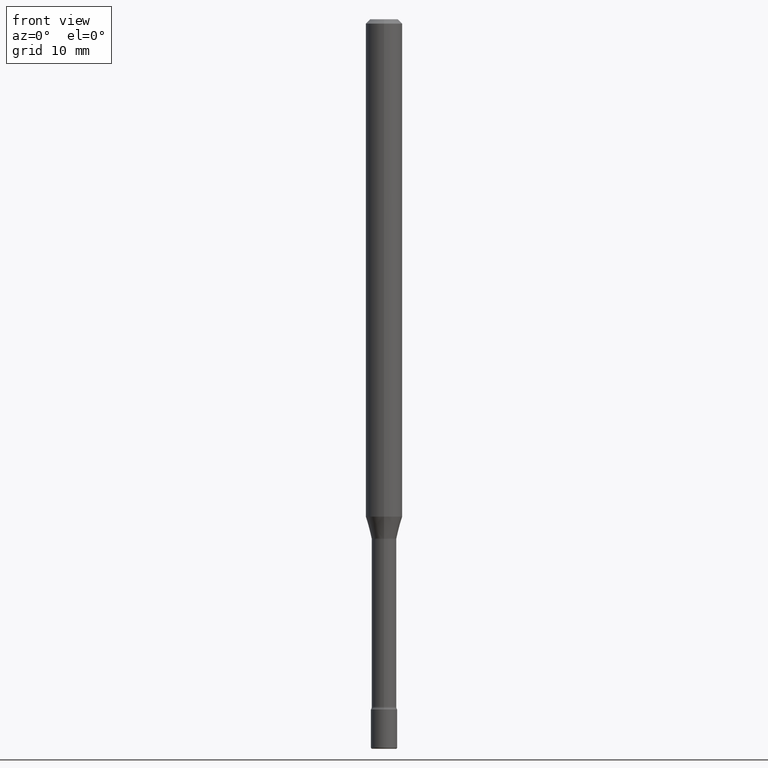
[diagram: clean part render]
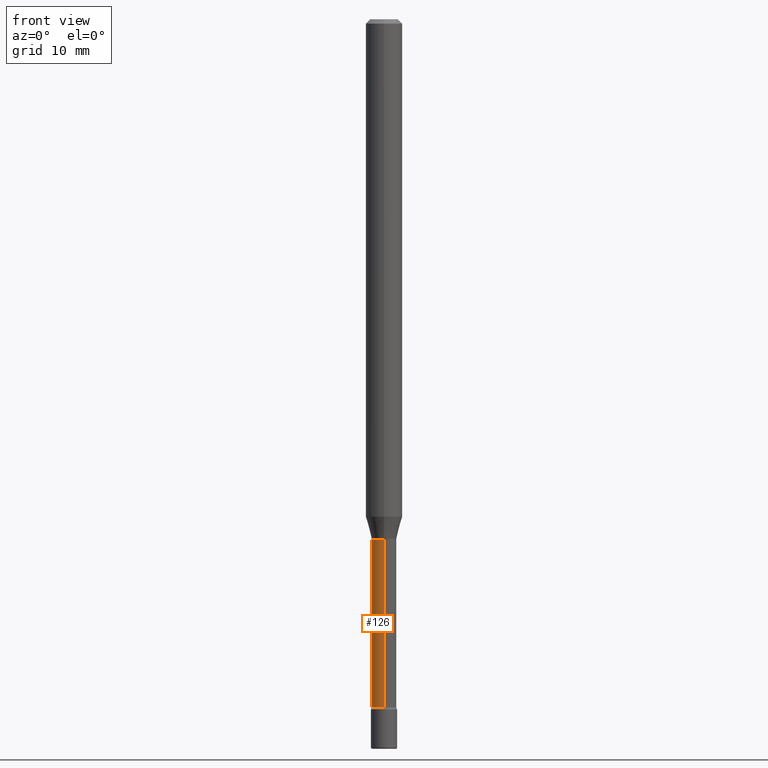
[diagram: same view with one face highlighted and labeled with its STEP entity id]
A machine part, front view. The second image highlights one B-rep face of the part: STEP entity #126.
In plain terms, the highlighted cylindrical surface (edge-blend (fillet) strip) has radius 1.0744 mm, axis along (-0, 0, 1).
Its self-contained STEP definition (entity closure, byte-faithful):
#20 = CARTESIAN_POINT ( 'NONE',  ( -1.169113584055446105E-44, 1.669184350826100908E-30, 4.780733988912460139E-16 ) ) ;
#33 = EDGE_CURVE ( 'NONE', #393, #424, #68, .T. ) ;
#49 = DIRECTION ( 'NONE',  ( -2.445411864812793917E-29, 3.491562882129241838E-15, 1.000000000000000000 ) ) ;
#61 = CARTESIAN_POINT ( 'NONE',  ( 3.005595772265800451E-16, 0.04229999999999378701, -1.781974787463811438 ) ) ;
#68 = CIRCLE ( 'NONE', #176, 0.04229999999999999732 ) ;
#72 = CARTESIAN_POINT ( 'NONE',  ( -2.953793212660855675E-16, -0.04230000000000623539, -1.781974787463810994 ) ) ;
#93 = CARTESIAN_POINT ( 'NONE',  ( 4.357662288061261093E-29, -6.221877024798788192E-15, -1.781974787463811216 ) ) ;
#126 = ADVANCED_FACE ( 'NONE', ( #367 ), #414, .T. ) ;
#132 = DIRECTION ( 'NONE',  ( -6.982962677686266711E-15, -1.000000000000000000, 6.458269488567998169E-15 ) ) ;
#133 = AXIS2_PLACEMENT_3D ( 'NONE', #93, #263, #231 ) ;
#139 = CARTESIAN_POINT ( 'NONE',  ( -2.953793212661290535E-16, -0.04229999999999999732, 6.257665088053130012E-16 ) ) ;
#164 = LINE ( 'NONE', #348, #379 ) ;
#169 = DIRECTION ( 'NONE',  ( -2.445411864812793917E-29, 3.491562882129241838E-15, 1.000000000000000000 ) ) ;
#176 = AXIS2_PLACEMENT_3D ( 'NONE', #351, #533, #132 ) ;
#178 = LINE ( 'NONE', #139, #218 ) ;
#193 = AXIS2_PLACEMENT_3D ( 'NONE', #20, #199, #421 ) ;
#194 = VERTEX_POINT ( 'NONE', #72 ) ;
#199 = DIRECTION ( 'NONE',  ( -2.445411864812793917E-29, 3.491562882129241838E-15, 1.000000000000000000 ) ) ;
#218 = VECTOR ( 'NONE', #49, 39.37007874015748143 ) ;
#231 = DIRECTION ( 'NONE',  ( -6.982962677686265133E-15, -1.000000000000000000, 6.458269488567996591E-15 ) ) ;
#234 = VERTEX_POINT ( 'NONE', #61 ) ;
#263 = DIRECTION ( 'NONE',  ( -2.445411864812793917E-29, 3.491562882129241838E-15, 1.000000000000000000 ) ) ;
#315 = ORIENTED_EDGE ( 'NONE', *, *, #33, .T. ) ;
#324 = EDGE_CURVE ( 'NONE', #393, #234, #164, .T. ) ;
#338 = CARTESIAN_POINT ( 'NONE',  ( 3.101519041593414751E-16, 0.04229999999999176780, -2.356414547187247965 ) ) ;
#348 = CARTESIAN_POINT ( 'NONE',  ( 3.005595772265223103E-16, 0.04229999999999999732, 3.303802889771791745E-16 ) ) ;
#351 = CARTESIAN_POINT ( 'NONE',  ( 5.762404092109162712E-29, -8.227569567868378496E-15, -2.356414547187247521 ) ) ;
#362 = EDGE_LOOP ( 'NONE', ( #499, #315, #489, #407 ) ) ;
#367 = FACE_OUTER_BOUND ( 'NONE', #362, .T. ) ;
#379 = VECTOR ( 'NONE', #169, 39.37007874015748143 ) ;
#391 = CIRCLE ( 'NONE', #133, 0.04230000000000001120 ) ;
#393 = VERTEX_POINT ( 'NONE', #338 ) ;
#407 = ORIENTED_EDGE ( 'NONE', *, *, #553, .F. ) ;
#414 = CYLINDRICAL_SURFACE ( 'NONE', #193, 0.04229999999999999732 ) ;
#421 = DIRECTION ( 'NONE',  ( -6.982962677686266711E-15, -1.000000000000000000, 3.491562882129241049E-15 ) ) ;
#424 = VERTEX_POINT ( 'NONE', #430 ) ;
#430 = CARTESIAN_POINT ( 'NONE',  ( -2.953793212660714173E-16, -0.04230000000000822685, -2.356414547187247077 ) ) ;
#489 = ORIENTED_EDGE ( 'NONE', *, *, #494, .T. ) ;
#494 = EDGE_CURVE ( 'NONE', #424, #194, #178, .T. ) ;
#499 = ORIENTED_EDGE ( 'NONE', *, *, #324, .F. ) ;
#533 = DIRECTION ( 'NONE',  ( -2.445411864812793917E-29, 3.491562882129241838E-15, 1.000000000000000000 ) ) ;
#553 = EDGE_CURVE ( 'NONE', #234, #194, #391, .T. ) ;